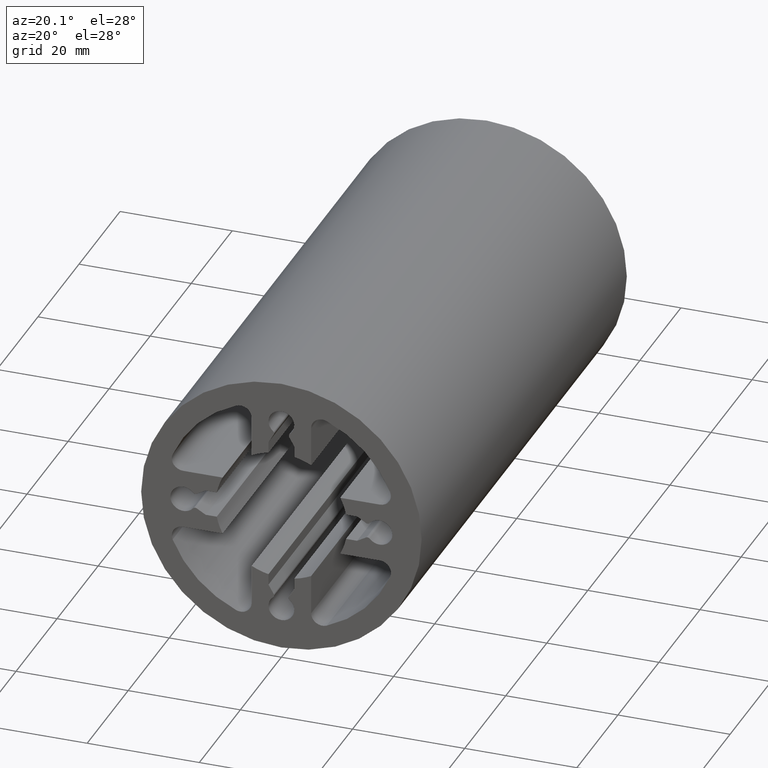
[diagram: clean part render]
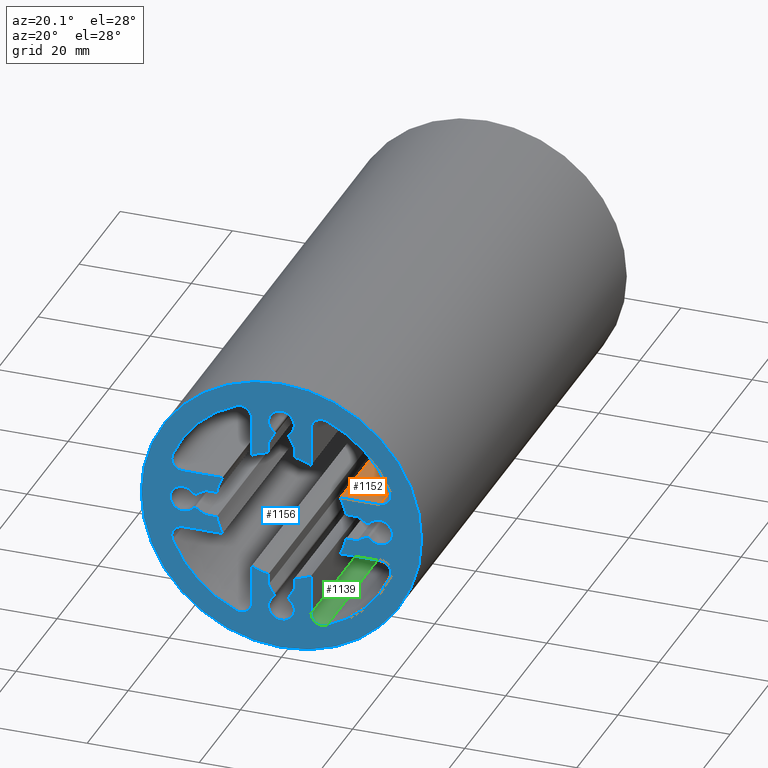
[diagram: same view with three faces highlighted in distinct colors, each labeled with its STEP entity id]
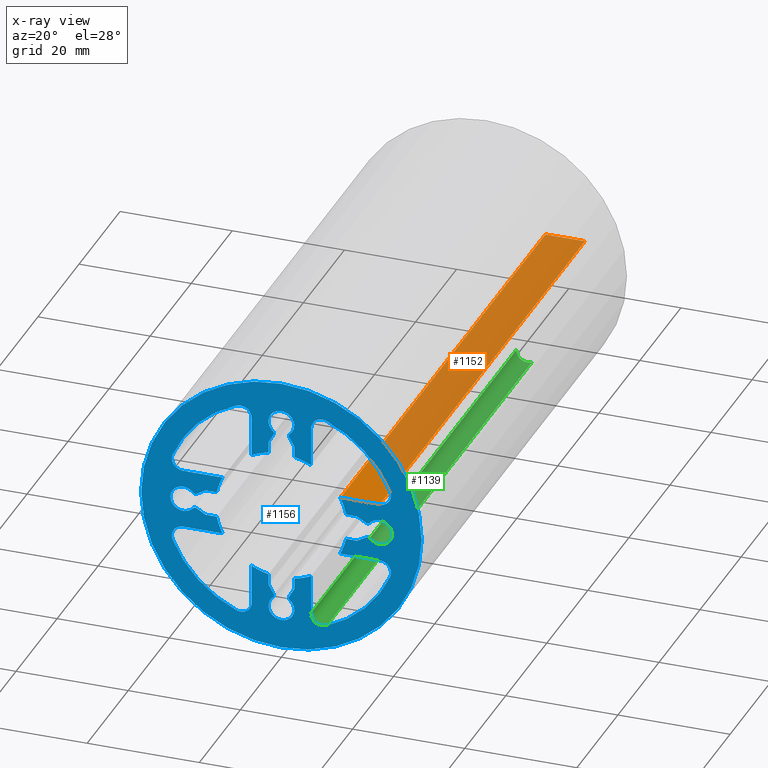
[diagram: x-ray of the same camera — body ghosted, the three highlighted faces saturated]
A machine part, auxiliary view with three faces highlighted in distinct colors.
The next image is the same camera in x-ray (body ghosted, the three faces saturated) — at least one of them is partly hidden behind the body in this view.
Their STEP definitions:

[orange] entity #1152 — the highlighted planar face has unit normal (0, 0, -1).
#40=PLANE('',#1294);
#96=FACE_OUTER_BOUND('',#155,.T.);
#155=EDGE_LOOP('',(#936,#937,#938,#939));
#262=LINE('',#1983,#367);
#263=LINE('',#1987,#368);
#264=LINE('',#1989,#369);
#265=LINE('',#1990,#370);
#367=VECTOR('',#1631,10.);
#368=VECTOR('',#1636,10.);
#369=VECTOR('',#1637,10.);
#370=VECTOR('',#1638,10.);
#545=VERTEX_POINT('',#1980);
#546=VERTEX_POINT('',#1982);
#547=VERTEX_POINT('',#1986);
#548=VERTEX_POINT('',#1988);
#711=EDGE_CURVE('',#545,#546,#262,.T.);
#713=EDGE_CURVE('',#547,#545,#263,.T.);
#714=EDGE_CURVE('',#547,#548,#264,.T.);
#715=EDGE_CURVE('',#546,#548,#265,.T.);
#936=ORIENTED_EDGE('',*,*,#713,.F.);
#937=ORIENTED_EDGE('',*,*,#714,.T.);
#938=ORIENTED_EDGE('',*,*,#715,.F.);
#939=ORIENTED_EDGE('',*,*,#711,.F.);
#1152=ADVANCED_FACE('',(#96),#40,.F.);
#1294=AXIS2_PLACEMENT_3D('',#1985,#1634,#1635);
#1631=DIRECTION('',(0.,1.,0.));
#1634=DIRECTION('center_axis',(0.,0.,-1.));
#1635=DIRECTION('ref_axis',(-1.,0.,0.));
#1636=DIRECTION('',(-1.,0.,0.));
#1637=DIRECTION('',(0.,1.,0.));
#1638=DIRECTION('',(1.,0.,0.));
#1980=CARTESIAN_POINT('',(10.4867773886929,0.,5.30000000000001));
#1982=CARTESIAN_POINT('',(10.4867773886929,100.,5.30000000000001));
#1983=CARTESIAN_POINT('',(10.4867773886929,0.,5.30000000000001));
#1985=CARTESIAN_POINT('Origin',(17.5416646872525,0.,5.30000000000001));
#1986=CARTESIAN_POINT('',(17.5416646872525,0.,5.30000000000001));
#1987=CARTESIAN_POINT('',(8.77083234362625,0.,5.30000000000001));
#1988=CARTESIAN_POINT('',(17.5416646872525,100.,5.30000000000001));
#1989=CARTESIAN_POINT('',(17.5416646872525,0.,5.30000000000001));
#1990=CARTESIAN_POINT('',(8.77083234362625,100.,5.30000000000001));

[blue] entity #1156 — the highlighted planar face has unit normal (0, 1, 0).
#15=FACE_BOUND('',#160,.T.);
#41=PLANE('',#1304);
#100=FACE_OUTER_BOUND('',#159,.T.);
#159=EDGE_LOOP('',(#952));
#160=EDGE_LOOP('',(#953,#954,#955,#956,#957,#958,#959,#960,#961,#962,#963,
#964,#965,#966,#967,#968,#969,#970,#971,#972,#973,#974,#975,#976,#977,#978,
#979,#980,#981,#982,#983,#984,#985,#986,#987,#988,#989,#990,#991,#992,#993,
#994,#995,#996,#997,#998,#999,#1000,#1001,#1002,#1003,#1004,#1005,#1006,
#1007,#1008));
#165=LINE('',#1675,#270);
#169=LINE('',#1687,#274);
#172=LINE('',#1693,#277);
#178=LINE('',#1717,#283);
#181=LINE('',#1723,#286);
#185=LINE('',#1735,#290);
#191=LINE('',#1759,#296);
#195=LINE('',#1771,#300);
#198=LINE('',#1777,#303);
#204=LINE('',#1801,#309);
#207=LINE('',#1807,#312);
#211=LINE('',#1819,#316);
#217=LINE('',#1843,#322);
#221=LINE('',#1855,#326);
#224=LINE('',#1861,#329);
#230=LINE('',#1885,#335);
#233=LINE('',#1891,#338);
#237=LINE('',#1903,#342);
#243=LINE('',#1927,#348);
#247=LINE('',#1939,#352);
#250=LINE('',#1945,#355);
#256=LINE('',#1969,#361);
#259=LINE('',#1975,#364);
#263=LINE('',#1987,#368);
#270=VECTOR('',#1318,10.);
#274=VECTOR('',#1330,10.);
#277=VECTOR('',#1335,10.);
#283=VECTOR('',#1361,10.);
#286=VECTOR('',#1366,10.);
#290=VECTOR('',#1378,10.);
#296=VECTOR('',#1404,10.);
#300=VECTOR('',#1416,10.);
#303=VECTOR('',#1421,10.);
#309=VECTOR('',#1447,10.);
#312=VECTOR('',#1452,10.);
#316=VECTOR('',#1464,10.);
#322=VECTOR('',#1490,10.);
#326=VECTOR('',#1502,10.);
#329=VECTOR('',#1507,10.);
#335=VECTOR('',#1533,10.);
#338=VECTOR('',#1538,10.);
#342=VECTOR('',#1550,10.);
#348=VECTOR('',#1576,10.);
#352=VECTOR('',#1588,10.);
#355=VECTOR('',#1593,10.);
#361=VECTOR('',#1619,10.);
#364=VECTOR('',#1624,10.);
#368=VECTOR('',#1636,10.);
#373=CIRCLE('',#1182,2.);
#375=CIRCLE('',#1186,11.75);
#377=CIRCLE('',#1191,0.5);
#379=CIRCLE('',#1194,2.3);
#381=CIRCLE('',#1197,0.5);
#383=CIRCLE('',#1202,11.7500000000001);
#385=CIRCLE('',#1206,2.);
#387=CIRCLE('',#1209,21.);
#389=CIRCLE('',#1212,2.);
#391=CIRCLE('',#1216,11.7499999999999);
#393=CIRCLE('',#1221,0.499999999999999);
#395=CIRCLE('',#1224,2.3);
#397=CIRCLE('',#1227,0.500000000000001);
#399=CIRCLE('',#1232,11.7499999999999);
#401=CIRCLE('',#1236,2.);
#403=CIRCLE('',#1239,21.);
#405=CIRCLE('',#1242,2.);
#407=CIRCLE('',#1246,11.7499999999999);
#409=CIRCLE('',#1251,0.5);
#411=CIRCLE('',#1254,2.3);
#413=CIRCLE('',#1257,0.5);
#415=CIRCLE('',#1262,11.7499999999999);
#417=CIRCLE('',#1266,2.);
#419=CIRCLE('',#1269,21.);
#421=CIRCLE('',#1272,2.);
#423=CIRCLE('',#1276,11.75);
#425=CIRCLE('',#1281,0.5);
#427=CIRCLE('',#1284,2.3);
#429=CIRCLE('',#1287,0.499999999999999);
#431=CIRCLE('',#1292,11.75);
#433=CIRCLE('',#1296,2.);
#435=CIRCLE('',#1299,21.);
#438=CIRCLE('',#1303,25.);
#439=VERTEX_POINT('',#1665);
#440=VERTEX_POINT('',#1666);
#443=VERTEX_POINT('',#1674);
#445=VERTEX_POINT('',#1680);
#447=VERTEX_POINT('',#1686);
#449=VERTEX_POINT('',#1692);
#451=VERTEX_POINT('',#1698);
#453=VERTEX_POINT('',#1704);
#455=VERTEX_POINT('',#1710);
#457=VERTEX_POINT('',#1716);
#459=VERTEX_POINT('',#1722);
#461=VERTEX_POINT('',#1728);
#463=VERTEX_POINT('',#1734);
#465=VERTEX_POINT('',#1740);
#467=VERTEX_POINT('',#1746);
#469=VERTEX_POINT('',#1752);
#471=VERTEX_POINT('',#1758);
#473=VERTEX_POINT('',#1764);
#475=VERTEX_POINT('',#1770);
#477=VERTEX_POINT('',#1776);
#479=VERTEX_POINT('',#1782);
#481=VERTEX_POINT('',#1788);
#483=VERTEX_POINT('',#1794);
#485=VERTEX_POINT('',#1800);
#487=VERTEX_POINT('',#1806);
#489=VERTEX_POINT('',#1812);
#491=VERTEX_POINT('',#1818);
#493=VERTEX_POINT('',#1824);
#495=VERTEX_POINT('',#1830);
#497=VERTEX_POINT('',#1836);
#499=VERTEX_POINT('',#1842);
#501=VERTEX_POINT('',#1848);
#503=VERTEX_POINT('',#1854);
#505=VERTEX_POINT('',#1860);
#507=VERTEX_POINT('',#1866);
#509=VERTEX_POINT('',#1872);
#511=VERTEX_POINT('',#1878);
#513=VERTEX_POINT('',#1884);
#515=VERTEX_POINT('',#1890);
#517=VERTEX_POINT('',#1896);
#519=VERTEX_POINT('',#1902);
#521=VERTEX_POINT('',#1908);
#523=VERTEX_POINT('',#1914);
#525=VERTEX_POINT('',#1920);
#527=VERTEX_POINT('',#1926);
#529=VERTEX_POINT('',#1932);
#531=VERTEX_POINT('',#1938);
#533=VERTEX_POINT('',#1944);
#535=VERTEX_POINT('',#1950);
#537=VERTEX_POINT('',#1956);
#539=VERTEX_POINT('',#1962);
#541=VERTEX_POINT('',#1968);
#543=VERTEX_POINT('',#1974);
#545=VERTEX_POINT('',#1980);
#547=VERTEX_POINT('',#1986);
#549=VERTEX_POINT('',#1992);
#552=VERTEX_POINT('',#2003);
#553=EDGE_CURVE('',#439,#440,#373,.T.);
#557=EDGE_CURVE('',#443,#439,#165,.T.);
#560=EDGE_CURVE('',#445,#443,#375,.T.);
#563=EDGE_CURVE('',#447,#445,#169,.T.);
#566=EDGE_CURVE('',#449,#447,#172,.T.);
#569=EDGE_CURVE('',#451,#449,#377,.T.);
#572=EDGE_CURVE('',#453,#451,#379,.T.);
#575=EDGE_CURVE('',#455,#453,#381,.T.);
#578=EDGE_CURVE('',#457,#455,#178,.T.);
#581=EDGE_CURVE('',#459,#457,#181,.T.);
#584=EDGE_CURVE('',#461,#459,#383,.T.);
#587=EDGE_CURVE('',#463,#461,#185,.T.);
#590=EDGE_CURVE('',#465,#463,#385,.T.);
#593=EDGE_CURVE('',#467,#465,#387,.T.);
#596=EDGE_CURVE('',#469,#467,#389,.T.);
#599=EDGE_CURVE('',#471,#469,#191,.T.);
#602=EDGE_CURVE('',#473,#471,#391,.T.);
#605=EDGE_CURVE('',#475,#473,#195,.T.);
#608=EDGE_CURVE('',#477,#475,#198,.T.);
#611=EDGE_CURVE('',#479,#477,#393,.T.);
#614=EDGE_CURVE('',#481,#479,#395,.T.);
#617=EDGE_CURVE('',#483,#481,#397,.T.);
#620=EDGE_CURVE('',#485,#483,#204,.T.);
#623=EDGE_CURVE('',#487,#485,#207,.T.);
#626=EDGE_CURVE('',#489,#487,#399,.T.);
#629=EDGE_CURVE('',#491,#489,#211,.T.);
#632=EDGE_CURVE('',#493,#491,#401,.T.);
#635=EDGE_CURVE('',#495,#493,#403,.T.);
#638=EDGE_CURVE('',#497,#495,#405,.T.);
#641=EDGE_CURVE('',#499,#497,#217,.T.);
#644=EDGE_CURVE('',#501,#499,#407,.T.);
#647=EDGE_CURVE('',#503,#501,#221,.T.);
#650=EDGE_CURVE('',#505,#503,#224,.T.);
#653=EDGE_CURVE('',#507,#505,#409,.T.);
#656=EDGE_CURVE('',#509,#507,#411,.T.);
#659=EDGE_CURVE('',#511,#509,#413,.T.);
#662=EDGE_CURVE('',#513,#511,#230,.T.);
#665=EDGE_CURVE('',#515,#513,#233,.T.);
#668=EDGE_CURVE('',#517,#515,#415,.T.);
#671=EDGE_CURVE('',#519,#517,#237,.T.);
#674=EDGE_CURVE('',#521,#519,#417,.T.);
#677=EDGE_CURVE('',#523,#521,#419,.T.);
#680=EDGE_CURVE('',#525,#523,#421,.T.);
#683=EDGE_CURVE('',#527,#525,#243,.T.);
#686=EDGE_CURVE('',#529,#527,#423,.T.);
#689=EDGE_CURVE('',#531,#529,#247,.T.);
#692=EDGE_CURVE('',#533,#531,#250,.T.);
#695=EDGE_CURVE('',#535,#533,#425,.T.);
#698=EDGE_CURVE('',#537,#535,#427,.T.);
#701=EDGE_CURVE('',#539,#537,#429,.T.);
#704=EDGE_CURVE('',#541,#539,#256,.T.);
#707=EDGE_CURVE('',#543,#541,#259,.T.);
#710=EDGE_CURVE('',#545,#543,#431,.T.);
#713=EDGE_CURVE('',#547,#545,#263,.T.);
#716=EDGE_CURVE('',#549,#547,#433,.T.);
#719=EDGE_CURVE('',#440,#549,#435,.T.);
#723=EDGE_CURVE('',#552,#552,#438,.T.);
#952=ORIENTED_EDGE('',*,*,#723,.T.);
#953=ORIENTED_EDGE('',*,*,#553,.T.);
#954=ORIENTED_EDGE('',*,*,#719,.T.);
#955=ORIENTED_EDGE('',*,*,#716,.T.);
#956=ORIENTED_EDGE('',*,*,#713,.T.);
#957=ORIENTED_EDGE('',*,*,#710,.T.);
#958=ORIENTED_EDGE('',*,*,#707,.T.);
#959=ORIENTED_EDGE('',*,*,#704,.T.);
#960=ORIENTED_EDGE('',*,*,#701,.T.);
#961=ORIENTED_EDGE('',*,*,#698,.T.);
#962=ORIENTED_EDGE('',*,*,#695,.T.);
#963=ORIENTED_EDGE('',*,*,#692,.T.);
#964=ORIENTED_EDGE('',*,*,#689,.T.);
#965=ORIENTED_EDGE('',*,*,#686,.T.);
#966=ORIENTED_EDGE('',*,*,#683,.T.);
#967=ORIENTED_EDGE('',*,*,#680,.T.);
#968=ORIENTED_EDGE('',*,*,#677,.T.);
#969=ORIENTED_EDGE('',*,*,#674,.T.);
#970=ORIENTED_EDGE('',*,*,#671,.T.);
#971=ORIENTED_EDGE('',*,*,#668,.T.);
#972=ORIENTED_EDGE('',*,*,#665,.T.);
#973=ORIENTED_EDGE('',*,*,#662,.T.);
#974=ORIENTED_EDGE('',*,*,#659,.T.);
#975=ORIENTED_EDGE('',*,*,#656,.T.);
#976=ORIENTED_EDGE('',*,*,#653,.T.);
#977=ORIENTED_EDGE('',*,*,#650,.T.);
#978=ORIENTED_EDGE('',*,*,#647,.T.);
#979=ORIENTED_EDGE('',*,*,#644,.T.);
#980=ORIENTED_EDGE('',*,*,#641,.T.);
#981=ORIENTED_EDGE('',*,*,#638,.T.);
#982=ORIENTED_EDGE('',*,*,#635,.T.);
#983=ORIENTED_EDGE('',*,*,#632,.T.);
#984=ORIENTED_EDGE('',*,*,#629,.T.);
#985=ORIENTED_EDGE('',*,*,#626,.T.);
#986=ORIENTED_EDGE('',*,*,#623,.T.);
#987=ORIENTED_EDGE('',*,*,#620,.T.);
#988=ORIENTED_EDGE('',*,*,#617,.T.);
#989=ORIENTED_EDGE('',*,*,#614,.T.);
#990=ORIENTED_EDGE('',*,*,#611,.T.);
#991=ORIENTED_EDGE('',*,*,#608,.T.);
#992=ORIENTED_EDGE('',*,*,#605,.T.);
#993=ORIENTED_EDGE('',*,*,#602,.T.);
#994=ORIENTED_EDGE('',*,*,#599,.T.);
#995=ORIENTED_EDGE('',*,*,#596,.T.);
#996=ORIENTED_EDGE('',*,*,#593,.T.);
#997=ORIENTED_EDGE('',*,*,#590,.T.);
#998=ORIENTED_EDGE('',*,*,#587,.T.);
#999=ORIENTED_EDGE('',*,*,#584,.T.);
#1000=ORIENTED_EDGE('',*,*,#581,.T.);
#1001=ORIENTED_EDGE('',*,*,#578,.T.);
#1002=ORIENTED_EDGE('',*,*,#575,.T.);
#1003=ORIENTED_EDGE('',*,*,#572,.T.);
#1004=ORIENTED_EDGE('',*,*,#569,.T.);
#1005=ORIENTED_EDGE('',*,*,#566,.T.);
#1006=ORIENTED_EDGE('',*,*,#563,.T.);
#1007=ORIENTED_EDGE('',*,*,#560,.T.);
#1008=ORIENTED_EDGE('',*,*,#557,.T.);
#1156=ADVANCED_FACE('',(#100,#15),#41,.F.);
#1182=AXIS2_PLACEMENT_3D('',#1667,#1310,#1311);
#1186=AXIS2_PLACEMENT_3D('',#1681,#1323,#1324);
#1191=AXIS2_PLACEMENT_3D('',#1699,#1340,#1341);
#1194=AXIS2_PLACEMENT_3D('',#1705,#1347,#1348);
#1197=AXIS2_PLACEMENT_3D('',#1711,#1354,#1355);
#1202=AXIS2_PLACEMENT_3D('',#1729,#1371,#1372);
#1206=AXIS2_PLACEMENT_3D('',#1741,#1383,#1384);
#1209=AXIS2_PLACEMENT_3D('',#1747,#1390,#1391);
#1212=AXIS2_PLACEMENT_3D('',#1753,#1397,#1398);
#1216=AXIS2_PLACEMENT_3D('',#1765,#1409,#1410);
#1221=AXIS2_PLACEMENT_3D('',#1783,#1426,#1427);
#1224=AXIS2_PLACEMENT_3D('',#1789,#1433,#1434);
#1227=AXIS2_PLACEMENT_3D('',#1795,#1440,#1441);
#1232=AXIS2_PLACEMENT_3D('',#1813,#1457,#1458);
#1236=AXIS2_PLACEMENT_3D('',#1825,#1469,#1470);
#1239=AXIS2_PLACEMENT_3D('',#1831,#1476,#1477);
#1242=AXIS2_PLACEMENT_3D('',#1837,#1483,#1484);
#1246=AXIS2_PLACEMENT_3D('',#1849,#1495,#1496);
#1251=AXIS2_PLACEMENT_3D('',#1867,#1512,#1513);
#1254=AXIS2_PLACEMENT_3D('',#1873,#1519,#1520);
#1257=AXIS2_PLACEMENT_3D('',#1879,#1526,#1527);
#1262=AXIS2_PLACEMENT_3D('',#1897,#1543,#1544);
#1266=AXIS2_PLACEMENT_3D('',#1909,#1555,#1556);
#1269=AXIS2_PLACEMENT_3D('',#1915,#1562,#1563);
#1272=AXIS2_PLACEMENT_3D('',#1921,#1569,#1570);
#1276=AXIS2_PLACEMENT_3D('',#1933,#1581,#1582);
#1281=AXIS2_PLACEMENT_3D('',#1951,#1598,#1599);
#1284=AXIS2_PLACEMENT_3D('',#1957,#1605,#1606);
#1287=AXIS2_PLACEMENT_3D('',#1963,#1612,#1613);
#1292=AXIS2_PLACEMENT_3D('',#1981,#1629,#1630);
#1296=AXIS2_PLACEMENT_3D('',#1993,#1641,#1642);
#1299=AXIS2_PLACEMENT_3D('',#1998,#1648,#1649);
#1303=AXIS2_PLACEMENT_3D('',#2005,#1657,#1658);
#1304=AXIS2_PLACEMENT_3D('',#2006,#1659,#1660);
#1310=DIRECTION('center_axis',(0.,1.,0.));
#1311=DIRECTION('ref_axis',(-1.,0.,8.88178419700128E-15));
#1318=DIRECTION('',(0.,0.,1.));
#1323=DIRECTION('center_axis',(0.,1.,0.));
#1324=DIRECTION('ref_axis',(0.195744680851062,0.,0.980654893384271));
#1330=DIRECTION('',(0.,0.,-1.));
#1335=DIRECTION('',(0.500000000000004,0.,-0.866025403784436));
#1340=DIRECTION('center_axis',(0.,-1.,0.));
#1341=DIRECTION('ref_axis',(0.866025403784454,0.,0.499999999999973));
#1347=DIRECTION('center_axis',(0.,1.,0.));
#1348=DIRECTION('ref_axis',(-0.644354363108404,0.,-0.764727045907991));
#1354=DIRECTION('center_axis',(0.,-1.,0.));
#1355=DIRECTION('ref_axis',(-0.644354363108388,0.,-0.764727045908005));
#1361=DIRECTION('',(0.499999999999999,0.,0.866025403784439));
#1366=DIRECTION('',(-1.34755905407362E-14,0.,1.));
#1371=DIRECTION('center_axis',(0.,1.,0.));
#1372=DIRECTION('ref_axis',(-0.451063829787243,0.,0.892491692654708));
#1378=DIRECTION('',(-1.00716383648704E-14,0.,-1.));
#1383=DIRECTION('center_axis',(0.,1.,0.));
#1384=DIRECTION('ref_axis',(-0.384210526315766,0.,0.923245509855402));
#1390=DIRECTION('center_axis',(0.,1.,0.));
#1391=DIRECTION('ref_axis',(-0.923245509855394,0.,0.384210526315787));
#1397=DIRECTION('center_axis',(0.,1.,0.));
#1398=DIRECTION('ref_axis',(4.44089209850062E-15,0.,-1.));
#1404=DIRECTION('',(-1.,0.,-1.63664123429143E-14));
#1409=DIRECTION('center_axis',(0.,1.,0.));
#1410=DIRECTION('ref_axis',(-0.980654893384268,0.,0.195744680851076));
#1416=DIRECTION('',(1.,0.,6.73779527036796E-14));
#1421=DIRECTION('',(0.866025403784447,0.,0.499999999999985));
#1426=DIRECTION('center_axis',(0.,-1.,0.));
#1427=DIRECTION('ref_axis',(-0.500000000000028,0.,0.866025403784422));
#1433=DIRECTION('center_axis',(0.,1.,0.));
#1434=DIRECTION('ref_axis',(0.764727045908005,0.,-0.644354363108387));
#1440=DIRECTION('center_axis',(0.,-1.,0.));
#1441=DIRECTION('ref_axis',(0.764727045907977,0.,-0.644354363108421));
#1447=DIRECTION('',(-0.866025403784437,0.,0.500000000000003));
#1452=DIRECTION('',(-1.,0.,9.43291337851505E-14));
#1457=DIRECTION('center_axis',(0.,1.,0.));
#1458=DIRECTION('ref_axis',(-0.892491692654709,0.,-0.451063829787241));
#1464=DIRECTION('',(1.,0.,-1.63664123429143E-14));
#1469=DIRECTION('center_axis',(0.,1.,0.));
#1470=DIRECTION('ref_axis',(-0.923245509855394,0.,-0.384210526315787));
#1476=DIRECTION('center_axis',(0.,1.,0.));
#1477=DIRECTION('ref_axis',(-0.384210526315789,0.,-0.923245509855393));
#1483=DIRECTION('center_axis',(0.,1.,0.));
#1484=DIRECTION('ref_axis',(1.,0.,0.));
#1490=DIRECTION('',(2.26611863209583E-14,0.,-1.));
#1495=DIRECTION('center_axis',(0.,1.,0.));
#1496=DIRECTION('ref_axis',(-0.19574468085107,0.,-0.980654893384269));
#1502=DIRECTION('',(-8.9837270271574E-15,0.,1.));
#1507=DIRECTION('',(-0.500000000000012,0.,0.866025403784432));
#1512=DIRECTION('center_axis',(0.,-1.,0.));
#1513=DIRECTION('ref_axis',(-0.866025403784407,0.,-0.500000000000055));
#1519=DIRECTION('center_axis',(0.,1.,0.));
#1520=DIRECTION('ref_axis',(0.644354363108408,0.,0.764727045907988));
#1526=DIRECTION('center_axis',(0.,-1.,0.));
#1527=DIRECTION('ref_axis',(0.644354363108353,0.,0.764727045908035));
#1533=DIRECTION('',(-0.500000000000012,0.,-0.866025403784432));
#1538=DIRECTION('',(0.,0.,-1.));
#1543=DIRECTION('center_axis',(0.,1.,0.));
#1544=DIRECTION('ref_axis',(0.451063829787244,0.,-0.892491692654707));
#1550=DIRECTION('',(2.26611863209584E-14,0.,1.));
#1555=DIRECTION('center_axis',(0.,1.,0.));
#1556=DIRECTION('ref_axis',(0.384210526315761,0.,-0.923245509855405));
#1562=DIRECTION('center_axis',(0.,1.,0.));
#1563=DIRECTION('ref_axis',(0.923245509855394,0.,-0.384210526315787));
#1569=DIRECTION('center_axis',(0.,1.,0.));
#1570=DIRECTION('ref_axis',(0.,0.,1.));
#1576=DIRECTION('',(1.,0.,1.63664123429143E-14));
#1581=DIRECTION('center_axis',(0.,1.,0.));
#1582=DIRECTION('ref_axis',(0.980654893384267,0.,-0.19574468085108));
#1588=DIRECTION('',(-1.,0.,-1.0331286081231E-13));
#1593=DIRECTION('',(-0.86602540378444,0.,-0.499999999999998));
#1598=DIRECTION('center_axis',(0.,-1.,0.));
#1599=DIRECTION('ref_axis',(0.499999999999952,0.,-0.866025403784466));
#1605=DIRECTION('center_axis',(0.,1.,0.));
#1606=DIRECTION('ref_axis',(-0.764727045908002,0.,0.644354363108391));
#1612=DIRECTION('center_axis',(0.,-1.,0.));
#1613=DIRECTION('ref_axis',(-0.764727045907942,0.,0.644354363108462));
#1619=DIRECTION('',(0.866025403784434,0.,-0.500000000000007));
#1624=DIRECTION('',(1.,0.,-7.18698162172592E-14));
#1629=DIRECTION('center_axis',(0.,1.,0.));
#1630=DIRECTION('ref_axis',(0.892491692654711,0.,0.451063829787236));
#1636=DIRECTION('',(-1.,0.,0.));
#1641=DIRECTION('center_axis',(0.,1.,0.));
#1642=DIRECTION('ref_axis',(0.92324550985547,0.,0.384210526315605));
#1648=DIRECTION('center_axis',(0.,1.,0.));
#1649=DIRECTION('ref_axis',(0.384210526315785,0.,0.923245509855394));
#1657=DIRECTION('center_axis',(0.,-1.,0.));
#1658=DIRECTION('ref_axis',(1.,0.,0.));
#1659=DIRECTION('center_axis',(0.,1.,0.));
#1660=DIRECTION('ref_axis',(0.,0.,1.));
#1665=CARTESIAN_POINT('',(5.29999999999998,0.,17.5416646872525));
#1666=CARTESIAN_POINT('',(8.06842105263152,0.,19.3881557069633));
#1667=CARTESIAN_POINT('Origin',(7.29999999999998,0.,17.5416646872525));
#1674=CARTESIAN_POINT('',(5.29999999999998,0.,10.4867773886929));
#1675=CARTESIAN_POINT('',(5.29999999999998,0.,5.24338869434644));
#1680=CARTESIAN_POINT('',(2.30000000000001,0.,11.5226949972652));
#1681=CARTESIAN_POINT('Origin',(3.5527136788005E-14,0.,0.));
#1686=CARTESIAN_POINT('',(2.30000000000001,0.,13.5));
#1687=CARTESIAN_POINT('',(2.30000000000001,0.,6.75000000000002));
#1692=CARTESIAN_POINT('',(1.3711795148113,0.,15.1087642714576));
#1693=CARTESIAN_POINT('',(4.47092549517816,0.,9.7398467429049));
#1698=CARTESIAN_POINT('',(1.48201503514933,0.,15.7411277944116));
#1699=CARTESIAN_POINT('Origin',(1.80419221670353,0.,15.3587642714576));
#1704=CARTESIAN_POINT('',(-1.48201503514933,0.,15.7411277944116));
#1705=CARTESIAN_POINT('Origin',(0.,0.,17.5));
#1710=CARTESIAN_POINT('',(-1.37117951481132,0.,15.1087642714576));
#1711=CARTESIAN_POINT('Origin',(-1.80419221670351,0.,15.3587642714576));
#1716=CARTESIAN_POINT('',(-2.30000000000001,0.,13.5));
#1717=CARTESIAN_POINT('',(-4.93533573777249,0.,8.93546460717608));
#1722=CARTESIAN_POINT('',(-2.29999999999999,0.,11.5226949972652));
#1723=CARTESIAN_POINT('',(-2.29999999999991,0.,5.76134749863258));
#1728=CARTESIAN_POINT('',(-5.30000000000008,0.,10.4867773886928));
#1729=CARTESIAN_POINT('Origin',(3.5527136788005E-14,0.,0.));
#1734=CARTESIAN_POINT('',(-5.30000000000001,0.,17.5416646872525));
#1735=CARTESIAN_POINT('',(-5.3000000000001,0.,8.77083234362627));
#1740=CARTESIAN_POINT('',(-8.06842105263154,0.,19.3881557069633));
#1741=CARTESIAN_POINT('Origin',(-7.3,0.,17.5416646872525));
#1746=CARTESIAN_POINT('',(-19.3881557069633,0.,8.06842105263156));
#1747=CARTESIAN_POINT('Origin',(3.5527136788005E-14,0.,0.));
#1752=CARTESIAN_POINT('',(-17.5416646872525,0.,5.30000000000001));
#1753=CARTESIAN_POINT('Origin',(-17.5416646872525,0.,7.30000000000001));
#1758=CARTESIAN_POINT('',(-10.4867773886928,0.,5.30000000000013));
#1759=CARTESIAN_POINT('',(-5.24338869434643,0.,5.30000000000021));
#1764=CARTESIAN_POINT('',(-11.5226949972651,0.,2.30000000000015));
#1765=CARTESIAN_POINT('Origin',(3.5527136788005E-14,0.,0.));
#1770=CARTESIAN_POINT('',(-13.5,0.,2.30000000000001));
#1771=CARTESIAN_POINT('',(-6.75000000000007,0.,2.30000000000047));
#1776=CARTESIAN_POINT('',(-15.1087642714576,0.,1.37117951481134));
#1777=CARTESIAN_POINT('',(-9.73984674290475,0.,4.47092549517813));
#1782=CARTESIAN_POINT('',(-15.7411277944116,0.,1.4820150351493));
#1783=CARTESIAN_POINT('Origin',(-15.3587642714576,0.,1.80419221670355));
#1788=CARTESIAN_POINT('',(-15.7411277944116,0.,-1.4820150351493));
#1789=CARTESIAN_POINT('Origin',(-17.5,0.,0.));
#1794=CARTESIAN_POINT('',(-15.1087642714576,0.,-1.37117951481128));
#1795=CARTESIAN_POINT('Origin',(-15.3587642714576,0.,-1.80419221670351));
#1800=CARTESIAN_POINT('',(-13.5,0.,-2.29999999999998));
#1801=CARTESIAN_POINT('',(-8.93546460717607,0.,-4.93533573777248));
#1806=CARTESIAN_POINT('',(-11.5226949972651,0.,-2.30000000000016));
#1807=CARTESIAN_POINT('',(-5.76134749863265,0.,-2.30000000000071));
#1812=CARTESIAN_POINT('',(-10.4867773886928,0.,-5.30000000000009));
#1813=CARTESIAN_POINT('Origin',(3.5527136788005E-14,0.,0.));
#1818=CARTESIAN_POINT('',(-17.5416646872525,0.,-5.29999999999998));
#1819=CARTESIAN_POINT('',(-8.77083234362627,0.,-5.30000000000012));
#1824=CARTESIAN_POINT('',(-19.3881557069632,0.,-8.06842105263152));
#1825=CARTESIAN_POINT('Origin',(-17.5416646872525,0.,-7.29999999999998));
#1830=CARTESIAN_POINT('',(-8.06842105263152,0.,-19.3881557069632));
#1831=CARTESIAN_POINT('Origin',(3.5527136788005E-14,0.,0.));
#1836=CARTESIAN_POINT('',(-5.29999999999999,0.,-17.5416646872524));
#1837=CARTESIAN_POINT('Origin',(-7.29999999999999,0.,-17.5416646872524));
#1842=CARTESIAN_POINT('',(-5.30000000000015,0.,-10.4867773886928));
#1843=CARTESIAN_POINT('',(-5.30000000000027,0.,-5.24338869434644));
#1848=CARTESIAN_POINT('',(-2.30000000000003,0.,-11.5226949972652));
#1849=CARTESIAN_POINT('Origin',(3.5527136788005E-14,0.,0.));
#1854=CARTESIAN_POINT('',(-2.30000000000001,0.,-13.5));
#1855=CARTESIAN_POINT('',(-2.30000000000007,0.,-6.75000000000001));
#1860=CARTESIAN_POINT('',(-1.3711795148113,0.,-15.1087642714576));
#1861=CARTESIAN_POINT('',(-4.47092549517817,0.,-9.73984674290494));
#1866=CARTESIAN_POINT('',(-1.48201503514933,0.,-15.7411277944116));
#1867=CARTESIAN_POINT('Origin',(-1.80419221670351,0.,-15.3587642714576));
#1872=CARTESIAN_POINT('',(1.48201503514933,0.,-15.7411277944116));
#1873=CARTESIAN_POINT('Origin',(-8.88178419700125E-15,0.,-17.5));
#1878=CARTESIAN_POINT('',(1.3711795148113,0.,-15.1087642714576));
#1879=CARTESIAN_POINT('Origin',(1.80419221670351,0.,-15.3587642714576));
#1884=CARTESIAN_POINT('',(2.30000000000001,0.,-13.5));
#1885=CARTESIAN_POINT('',(4.93533573777253,0.,-8.93546460717614));
#1890=CARTESIAN_POINT('',(2.30000000000001,0.,-11.5226949972652));
#1891=CARTESIAN_POINT('',(2.30000000000001,0.,-5.76134749863259));
#1896=CARTESIAN_POINT('',(5.30000000000014,0.,-10.4867773886928));
#1897=CARTESIAN_POINT('Origin',(3.5527136788005E-14,0.,0.));
#1902=CARTESIAN_POINT('',(5.29999999999998,0.,-17.5416646872524));
#1903=CARTESIAN_POINT('',(5.30000000000018,0.,-8.77083234362627));
#1908=CARTESIAN_POINT('',(8.06842105263151,0.,-19.3881557069632));
#1909=CARTESIAN_POINT('Origin',(7.29999999999999,0.,-17.5416646872524));
#1914=CARTESIAN_POINT('',(19.3881557069633,0.,-8.06842105263152));
#1915=CARTESIAN_POINT('Origin',(3.5527136788005E-14,0.,0.));
#1920=CARTESIAN_POINT('',(17.5416646872525,0.,-5.29999999999998));
#1921=CARTESIAN_POINT('Origin',(17.5416646872525,0.,-7.29999999999998));
#1926=CARTESIAN_POINT('',(10.4867773886928,0.,-5.30000000000009));
#1927=CARTESIAN_POINT('',(5.24338869434647,0.,-5.30000000000018));
#1932=CARTESIAN_POINT('',(11.5226949972651,0.,-2.30000000000018));
#1933=CARTESIAN_POINT('Origin',(3.5527136788005E-14,0.,0.));
#1938=CARTESIAN_POINT('',(13.5,0.,-2.29999999999998));
#1939=CARTESIAN_POINT('',(6.75000000000013,0.,-2.30000000000067));
#1944=CARTESIAN_POINT('',(15.1087642714576,0.,-1.37117951481127));
#1945=CARTESIAN_POINT('',(9.73984674290485,0.,-4.47092549517809));
#1950=CARTESIAN_POINT('',(15.7411277944116,0.,-1.4820150351493));
#1951=CARTESIAN_POINT('Origin',(15.3587642714576,0.,-1.8041922167035));
#1956=CARTESIAN_POINT('',(15.7411277944116,0.,1.4820150351493));
#1957=CARTESIAN_POINT('Origin',(17.5,0.,0.));
#1962=CARTESIAN_POINT('',(15.1087642714576,0.,1.37117951481129));
#1963=CARTESIAN_POINT('Origin',(15.3587642714576,0.,1.80419221670355));
#1968=CARTESIAN_POINT('',(13.5,0.,2.30000000000001));
#1969=CARTESIAN_POINT('',(8.93546460717612,0.,4.9353357377725));
#1974=CARTESIAN_POINT('',(11.5226949972651,0.,2.30000000000016));
#1975=CARTESIAN_POINT('',(5.76134749863268,0.,2.30000000000057));
#1980=CARTESIAN_POINT('',(10.4867773886929,0.,5.30000000000001));
#1981=CARTESIAN_POINT('Origin',(3.5527136788005E-14,0.,0.));
#1986=CARTESIAN_POINT('',(17.5416646872525,0.,5.30000000000001));
#1987=CARTESIAN_POINT('',(8.77083234362625,0.,5.30000000000001));
#1992=CARTESIAN_POINT('',(19.3881557069634,0.,8.06842105263122));
#1993=CARTESIAN_POINT('Origin',(17.5416646872525,0.,7.30000000000001));
#1998=CARTESIAN_POINT('Origin',(3.5527136788005E-14,0.,0.));
#2003=CARTESIAN_POINT('',(-25.,0.,3.06161699786838E-15));
#2005=CARTESIAN_POINT('Origin',(3.5527136788005E-14,0.,0.));
#2006=CARTESIAN_POINT('Origin',(3.70765940287205E-14,0.,0.));

[green] entity #1139 — the highlighted cylindrical surface (edge-blend (fillet) strip) has radius 2 mm, axis along (0, 1, 0).
#83=FACE_OUTER_BOUND('',#142,.T.);
#142=EDGE_LOOP('',(#884,#885,#886,#887));
#238=LINE('',#1905,#343);
#240=LINE('',#1911,#345);
#343=VECTOR('',#1551,10.);
#345=VECTOR('',#1557,10.);
#417=CIRCLE('',#1266,2.);
#418=CIRCLE('',#1267,2.);
#519=VERTEX_POINT('',#1902);
#520=VERTEX_POINT('',#1904);
#521=VERTEX_POINT('',#1908);
#522=VERTEX_POINT('',#1910);
#672=EDGE_CURVE('',#519,#520,#238,.T.);
#674=EDGE_CURVE('',#521,#519,#417,.T.);
#675=EDGE_CURVE('',#521,#522,#240,.T.);
#676=EDGE_CURVE('',#520,#522,#418,.T.);
#884=ORIENTED_EDGE('',*,*,#674,.F.);
#885=ORIENTED_EDGE('',*,*,#675,.T.);
#886=ORIENTED_EDGE('',*,*,#676,.F.);
#887=ORIENTED_EDGE('',*,*,#672,.F.);
#1088=CYLINDRICAL_SURFACE('',#1265,2.);
#1139=ADVANCED_FACE('',(#83),#1088,.F.);
#1265=AXIS2_PLACEMENT_3D('',#1907,#1553,#1554);
#1266=AXIS2_PLACEMENT_3D('',#1909,#1555,#1556);
#1267=AXIS2_PLACEMENT_3D('',#1912,#1558,#1559);
#1551=DIRECTION('',(0.,1.,0.));
#1553=DIRECTION('center_axis',(0.,1.,0.));
#1554=DIRECTION('ref_axis',(0.384210526315761,0.,-0.923245509855405));
#1555=DIRECTION('center_axis',(0.,1.,0.));
#1556=DIRECTION('ref_axis',(0.384210526315761,0.,-0.923245509855405));
#1557=DIRECTION('',(0.,1.,0.));
#1558=DIRECTION('center_axis',(0.,-1.,0.));
#1559=DIRECTION('ref_axis',(0.384210526315761,0.,-0.923245509855405));
#1902=CARTESIAN_POINT('',(5.29999999999998,0.,-17.5416646872524));
#1904=CARTESIAN_POINT('',(5.29999999999998,100.,-17.5416646872524));
#1905=CARTESIAN_POINT('',(5.29999999999998,0.,-17.5416646872524));
#1907=CARTESIAN_POINT('Origin',(7.29999999999999,0.,-17.5416646872524));
#1908=CARTESIAN_POINT('',(8.06842105263151,0.,-19.3881557069632));
#1909=CARTESIAN_POINT('Origin',(7.29999999999999,0.,-17.5416646872524));
#1910=CARTESIAN_POINT('',(8.06842105263151,100.,-19.3881557069632));
#1911=CARTESIAN_POINT('',(8.06842105263151,0.,-19.3881557069632));
#1912=CARTESIAN_POINT('Origin',(7.29999999999999,100.,-17.5416646872524));